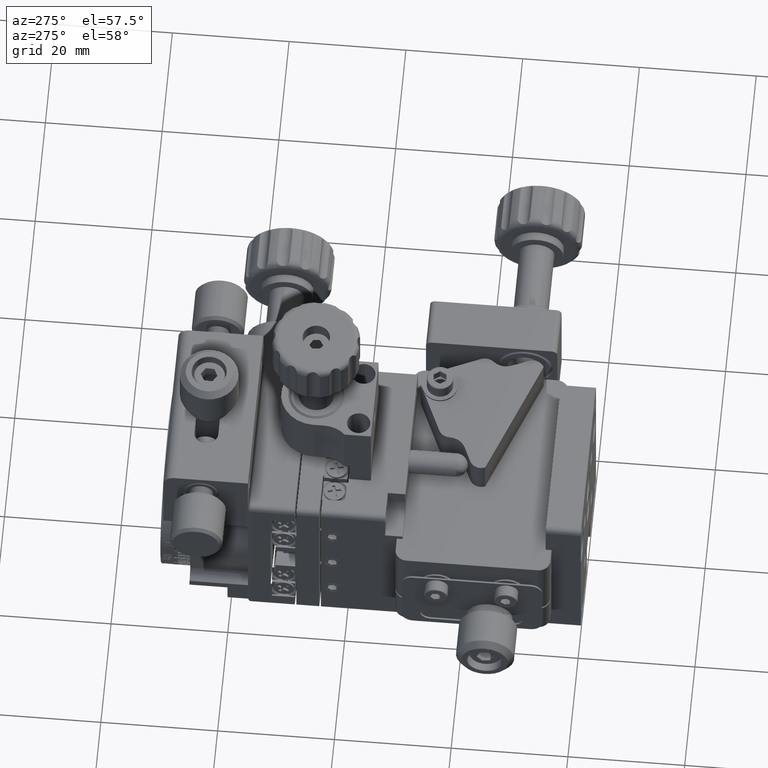
[diagram: clean part render]
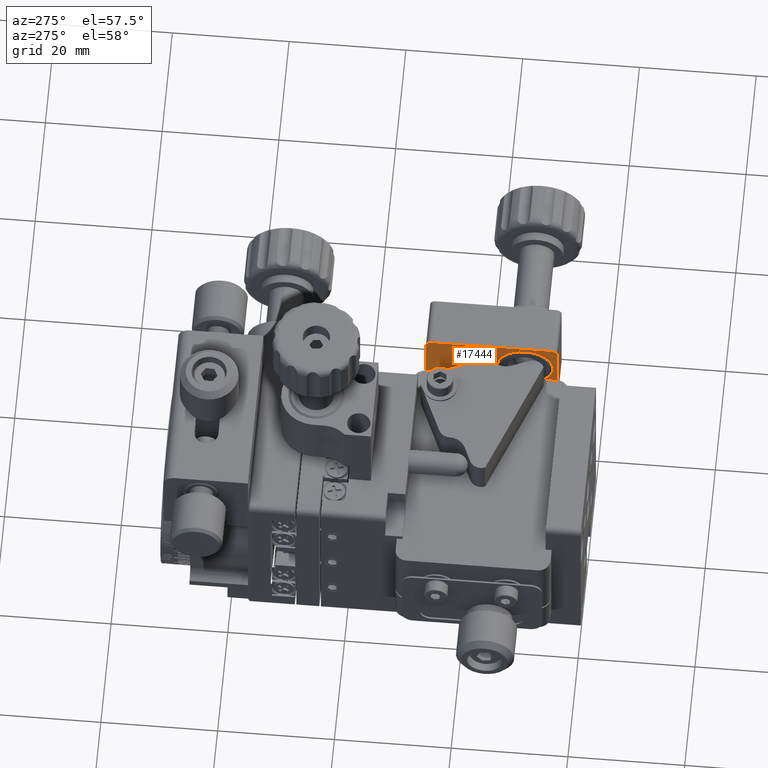
[diagram: same view with one face highlighted and labeled with its STEP entity id]
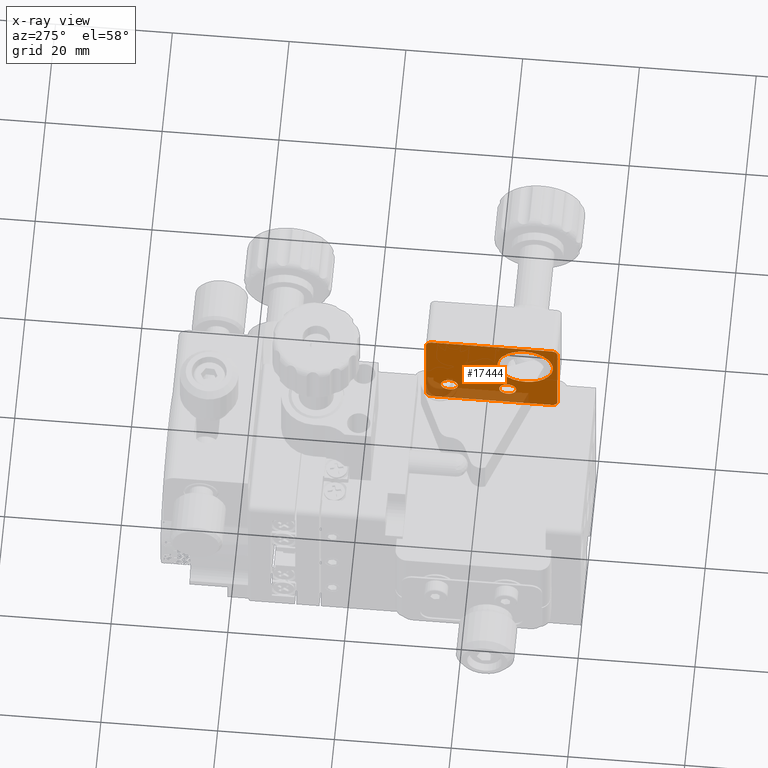
[diagram: x-ray of the same camera — body ghosted, the highlighted face saturated]
A machine part, auxiliary view. The second image highlights one B-rep face of the part: STEP entity #17444.
The next image is the same camera in x-ray: the body ghosted, the highlighted face saturated — about 20% of this face is hidden behind the body in this view.
In plain terms, the highlighted planar face has unit normal (-1, 0, 0).
Its self-contained STEP definition (entity closure, byte-faithful):
#76 = ORIENTED_EDGE ( 'NONE', *, *, #51316, .T. ) ;
#157 = ORIENTED_EDGE ( 'NONE', *, *, #39614, .F. ) ;
#351 = LINE ( 'NONE', #25183, #10974 ) ;
#1131 = CARTESIAN_POINT ( 'NONE',  ( 19.29999999999999005, 29.50000000000000000, 2.000000000000002665 ) ) ;
#1419 = CIRCLE ( 'NONE', #44315, 1.449999999999997291 ) ;
#2294 = VECTOR ( 'NONE', #22280, 1000.000000000000000 ) ;
#3359 = ORIENTED_EDGE ( 'NONE', *, *, #40150, .F. ) ;
#3788 = CIRCLE ( 'NONE', #24624, 1.000000000000000000 ) ;
#4633 = ORIENTED_EDGE ( 'NONE', *, *, #43739, .T. ) ;
#5168 = LINE ( 'NONE', #41785, #21239 ) ;
#5254 = DIRECTION ( 'NONE',  ( -9.090389337507751037E-32, 1.032160468206199975E-16, -1.000000000000000000 ) ) ;
#5572 = CARTESIAN_POINT ( 'NONE',  ( 19.29999999999998650, 7.999999999999996447, 0.9999999999999991118 ) ) ;
#7242 = AXIS2_PLACEMENT_3D ( 'NONE', #71088, #15410, #58932 ) ;
#10974 = VECTOR ( 'NONE', #5254, 1000.000000000000000 ) ;
#11033 = CIRCLE ( 'NONE', #37013, 1.449999999999997291 ) ;
#11957 = DIRECTION ( 'NONE',  ( -1.000000000000000000, 1.804112415015864587E-16, 1.059179781489762696E-31 ) ) ;
#12201 = FACE_OUTER_BOUND ( 'NONE', #73643, .T. ) ;
#12757 = VERTEX_POINT ( 'NONE', #50809 ) ;
#12779 = ORIENTED_EDGE ( 'NONE', *, *, #18382, .T. ) ;
#13912 = FACE_BOUND ( 'NONE', #78549, .T. ) ;
#15410 = DIRECTION ( 'NONE',  ( -1.000000000000000000, 1.804112415015864587E-16, 1.059179781489762696E-31 ) ) ;
#15982 = EDGE_CURVE ( 'NONE', #64648, #48772, #3788, .T. ) ;
#15989 = CARTESIAN_POINT ( 'NONE',  ( 19.29999999999999005, 28.49999999999998934, 1.000000000000002665 ) ) ;
#17056 = CIRCLE ( 'NONE', #19608, 4.750000000000000888 ) ;
#17444 = ADVANCED_FACE ( 'NONE', ( #13912, #38745, #73989, #12201 ), #50036, .T. ) ;
#17576 = CARTESIAN_POINT ( 'NONE',  ( 19.29999999999999005, 25.50000000000000355, 5.000000000000002665 ) ) ;
#18382 = EDGE_CURVE ( 'NONE', #48006, #21267, #61012, .T. ) ;
#18404 = CARTESIAN_POINT ( 'NONE',  ( 19.29999999999999005, 25.50000000000000355, 3.550000000000005596 ) ) ;
#19103 = CARTESIAN_POINT ( 'NONE',  ( 19.29999999999999005, 18.24999999999999645, 9.500000000000007105 ) ) ;
#19398 = VERTEX_POINT ( 'NONE', #44205 ) ;
#19608 = AXIS2_PLACEMENT_3D ( 'NONE', #25792, #38385, #24986 ) ;
#20382 = EDGE_CURVE ( 'NONE', #19398, #19398, #17056, .T. ) ;
#20488 = VERTEX_POINT ( 'NONE', #73282 ) ;
#20690 = VERTEX_POINT ( 'NONE', #18404 ) ;
#21239 = VECTOR ( 'NONE', #54794, 1000.000000000000000 ) ;
#21267 = VERTEX_POINT ( 'NONE', #58881 ) ;
#22280 = DIRECTION ( 'NONE',  ( -1.804112415015863847E-16, -1.000000000000000000, -1.032160468206200098E-16 ) ) ;
#22392 = CARTESIAN_POINT ( 'NONE',  ( 19.29999999999999005, 28.49999999999998934, 18.00000000000001066 ) ) ;
#24200 = CARTESIAN_POINT ( 'NONE',  ( 19.29999999999998650, 15.49999999999999645, 5.000000000000001776 ) ) ;
#24624 = AXIS2_PLACEMENT_3D ( 'NONE', #35635, #55133, #79921 ) ;
#24986 = DIRECTION ( 'NONE',  ( 0.000000000000000000, 0.000000000000000000, -1.000000000000000000 ) ) ;
#25183 = CARTESIAN_POINT ( 'NONE',  ( 19.29999999999998650, 6.999999999999993783, 18.00000000000000355 ) ) ;
#25498 = AXIS2_PLACEMENT_3D ( 'NONE', #73739, #80267, #67635 ) ;
#25792 = CARTESIAN_POINT ( 'NONE',  ( 19.29999999999998650, 12.49999999999999467, 12.50000000000000355 ) ) ;
#29403 = DIRECTION ( 'NONE',  ( 1.000000000000000000, -1.804112415015864587E-16, -1.059179781489762696E-31 ) ) ;
#29640 = CARTESIAN_POINT ( 'NONE',  ( 19.29999999999998650, 6.999999999999993783, 18.00000000000000355 ) ) ;
#29816 = VERTEX_POINT ( 'NONE', #1131 ) ;
#30040 = LINE ( 'NONE', #29640, #2294 ) ;
#31939 = EDGE_CURVE ( 'NONE', #29816, #21267, #5168, .T. ) ;
#31953 = CIRCLE ( 'NONE', #7242, 1.000000000000000000 ) ;
#32888 = VERTEX_POINT ( 'NONE', #52152 ) ;
#35635 = CARTESIAN_POINT ( 'NONE',  ( 19.29999999999998650, 7.999999999999994671, 2.000000000000000000 ) ) ;
#36479 = AXIS2_PLACEMENT_3D ( 'NONE', #19103, #55322, #62205 ) ;
#37013 = AXIS2_PLACEMENT_3D ( 'NONE', #17576, #29403, #72025 ) ;
#37321 = ORIENTED_EDGE ( 'NONE', *, *, #74929, .T. ) ;
#38385 = DIRECTION ( 'NONE',  ( 1.000000000000000000, -1.804112415015864587E-16, -1.059179781489762696E-31 ) ) ;
#38745 = FACE_BOUND ( 'NONE', #50137, .T. ) ;
#39614 = EDGE_CURVE ( 'NONE', #64648, #48888, #67192, .T. ) ;
#40150 = EDGE_CURVE ( 'NONE', #48006, #32888, #30040, .T. ) ;
#41785 = CARTESIAN_POINT ( 'NONE',  ( 19.29999999999999005, 29.50000000000000000, 18.00000000000001066 ) ) ;
#42911 = DIRECTION ( 'NONE',  ( 1.000000000000000000, -1.804112415015864587E-16, -1.059179781489762696E-31 ) ) ;
#43739 = EDGE_CURVE ( 'NONE', #20488, #20488, #1419, .T. ) ;
#44205 = CARTESIAN_POINT ( 'NONE',  ( 19.29999999999998650, 12.49999999999999467, 7.750000000000003553 ) ) ;
#44315 = AXIS2_PLACEMENT_3D ( 'NONE', #24200, #42911, #67675 ) ;
#45718 = CARTESIAN_POINT ( 'NONE',  ( 19.29999999999998650, 6.999999999999995559, 2.000000000000000888 ) ) ;
#48006 = VERTEX_POINT ( 'NONE', #22392 ) ;
#48114 = DIRECTION ( 'NONE',  ( 1.804112415015863847E-16, 1.000000000000000000, 1.032160468206200098E-16 ) ) ;
#48772 = VERTEX_POINT ( 'NONE', #45718 ) ;
#48888 = VERTEX_POINT ( 'NONE', #15989 ) ;
#49179 = ORIENTED_EDGE ( 'NONE', *, *, #20382, .T. ) ;
#50036 = PLANE ( 'NONE',  #36479 ) ;
#50137 = EDGE_LOOP ( 'NONE', ( #4633 ) ) ;
#50695 = EDGE_CURVE ( 'NONE', #12757, #48772, #351, .T. ) ;
#50809 = CARTESIAN_POINT ( 'NONE',  ( 19.29999999999998650, 6.999999999999995559, 17.00000000000000355 ) ) ;
#51316 = EDGE_CURVE ( 'NONE', #20690, #20690, #11033, .T. ) ;
#52152 = CARTESIAN_POINT ( 'NONE',  ( 19.29999999999998650, 7.999999999999992895, 18.00000000000000355 ) ) ;
#52390 = ORIENTED_EDGE ( 'NONE', *, *, #50695, .F. ) ;
#54665 = CARTESIAN_POINT ( 'NONE',  ( 19.29999999999999005, 28.49999999999999645, 17.00000000000000711 ) ) ;
#54794 = DIRECTION ( 'NONE',  ( 9.090389337507751037E-32, -1.032160468206199975E-16, 1.000000000000000000 ) ) ;
#55133 = DIRECTION ( 'NONE',  ( -1.000000000000000000, 1.804112415015864587E-16, 1.059179781489762696E-31 ) ) ;
#55322 = DIRECTION ( 'NONE',  ( -1.000000000000000000, 1.804112415015864587E-16, 1.095252285248714438E-31 ) ) ;
#56441 = EDGE_LOOP ( 'NONE', ( #49179 ) ) ;
#56552 = ORIENTED_EDGE ( 'NONE', *, *, #31939, .F. ) ;
#56772 = VECTOR ( 'NONE', #48114, 1000.000000000000000 ) ;
#58881 = CARTESIAN_POINT ( 'NONE',  ( 19.29999999999999005, 29.50000000000000000, 17.00000000000000711 ) ) ;
#58932 = DIRECTION ( 'NONE',  ( 0.000000000000000000, 0.000000000000000000, 1.000000000000000000 ) ) ;
#60545 = CIRCLE ( 'NONE', #25498, 1.000000000000000888 ) ;
#61012 = CIRCLE ( 'NONE', #71334, 1.000000000000000888 ) ;
#61960 = DIRECTION ( 'NONE',  ( 0.000000000000000000, 0.000000000000000000, 1.000000000000000000 ) ) ;
#62205 = DIRECTION ( 'NONE',  ( 9.090389337507751037E-32, -1.032160468206199975E-16, 1.000000000000000000 ) ) ;
#64648 = VERTEX_POINT ( 'NONE', #5572 ) ;
#67192 = LINE ( 'NONE', #72473, #56772 ) ;
#67635 = DIRECTION ( 'NONE',  ( 0.000000000000000000, 0.000000000000000000, 1.000000000000000000 ) ) ;
#67675 = DIRECTION ( 'NONE',  ( 0.000000000000000000, 0.000000000000000000, -1.000000000000000000 ) ) ;
#71088 = CARTESIAN_POINT ( 'NONE',  ( 19.29999999999999005, 28.49999999999999645, 2.000000000000002665 ) ) ;
#71334 = AXIS2_PLACEMENT_3D ( 'NONE', #54665, #11957, #61960 ) ;
#71491 = ORIENTED_EDGE ( 'NONE', *, *, #75774, .T. ) ;
#72025 = DIRECTION ( 'NONE',  ( 0.000000000000000000, 0.000000000000000000, -1.000000000000000000 ) ) ;
#72473 = CARTESIAN_POINT ( 'NONE',  ( 19.29999999999998650, 6.999999999999997335, 0.9999999999999991118 ) ) ;
#73282 = CARTESIAN_POINT ( 'NONE',  ( 19.29999999999998650, 15.49999999999999645, 3.550000000000004707 ) ) ;
#73643 = EDGE_LOOP ( 'NONE', ( #52390, #71491, #3359, #12779, #56552, #37321, #157, #76013 ) ) ;
#73739 = CARTESIAN_POINT ( 'NONE',  ( 19.29999999999998650, 7.999999999999994671, 17.00000000000000355 ) ) ;
#73989 = FACE_BOUND ( 'NONE', #56441, .T. ) ;
#74929 = EDGE_CURVE ( 'NONE', #29816, #48888, #31953, .T. ) ;
#75774 = EDGE_CURVE ( 'NONE', #12757, #32888, #60545, .T. ) ;
#76013 = ORIENTED_EDGE ( 'NONE', *, *, #15982, .T. ) ;
#78549 = EDGE_LOOP ( 'NONE', ( #76 ) ) ;
#79921 = DIRECTION ( 'NONE',  ( 0.000000000000000000, 0.000000000000000000, 1.000000000000000000 ) ) ;
#80267 = DIRECTION ( 'NONE',  ( -1.000000000000000000, 1.804112415015864587E-16, 1.059179781489762696E-31 ) ) ;